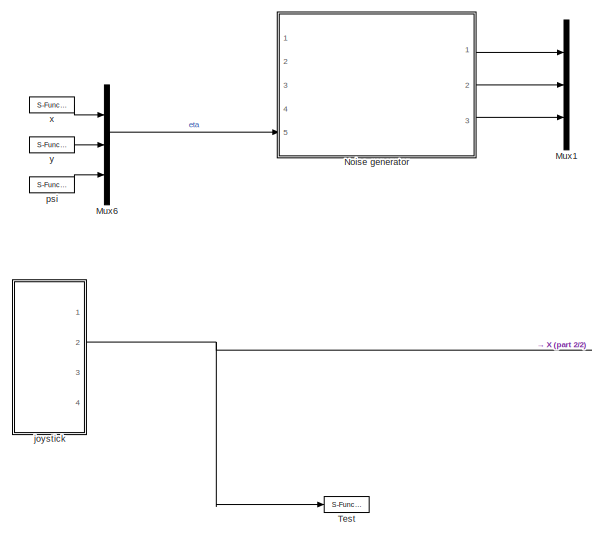
[diagram: root canvas - part 1/2, left side, full height]
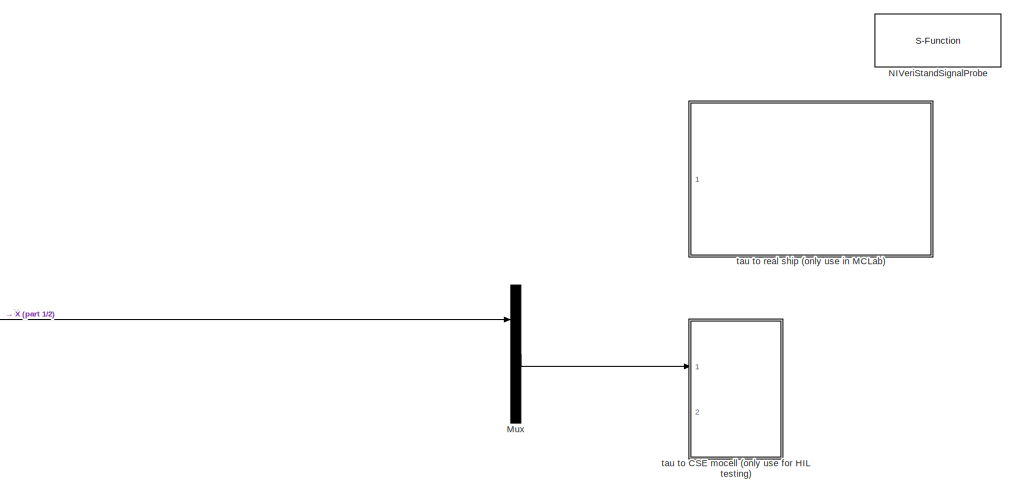
[diagram: root canvas - part 2/2, right side, full height]
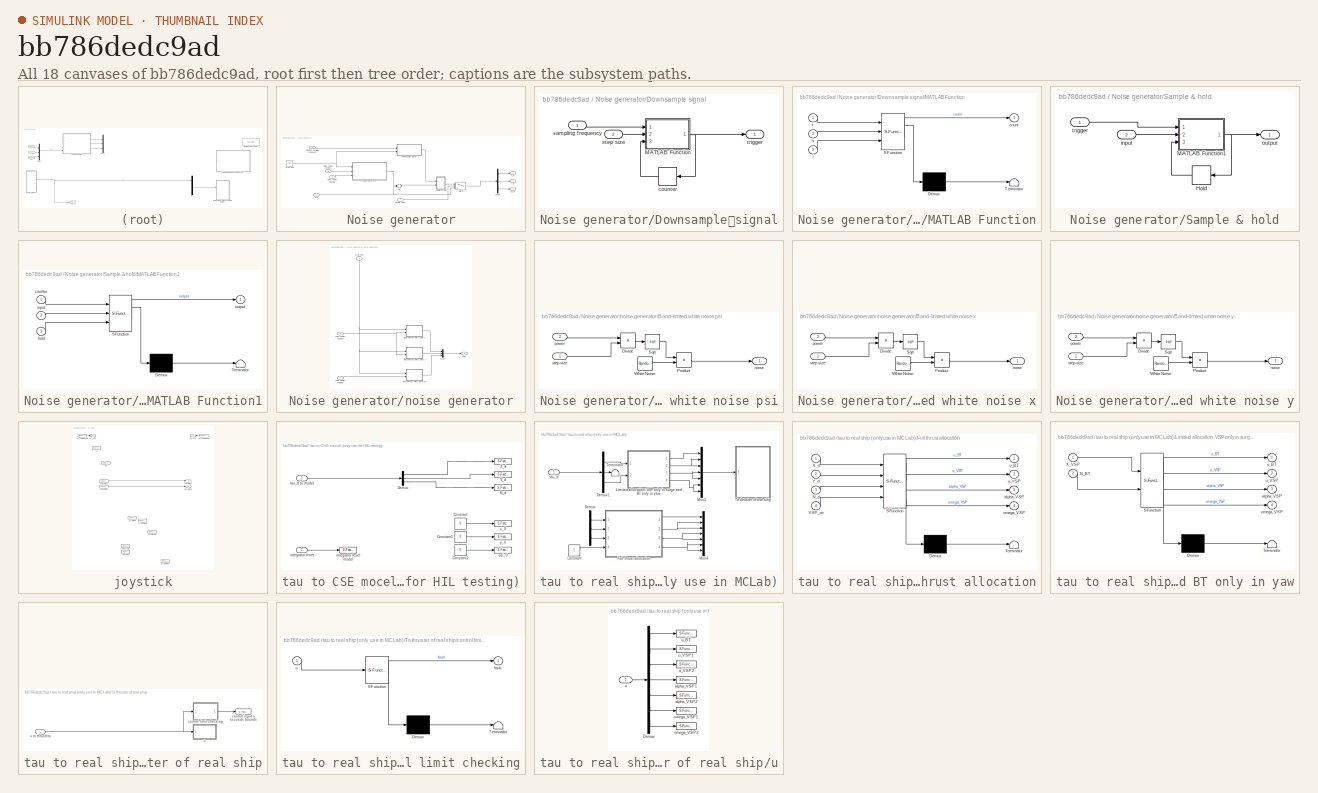
[diagram: thumbnail index - all 18 canvases of the model, root first then tree order]
MODEL slx_bb786dedc9ad
KIND model
CONFIG AbsTol = auto
CONFIG FixedStep = 0.01
CONFIG MaxStep = auto
CONFIG MinStep = auto
CONFIG RelTol = 1e-3
CONFIG SampleTimeConstraint = Unconstrained
CONFIG Solver = ode4
CONFIG SolverMode = Auto
CONFIG SolverName = ode4
CONFIG StartTime = 0.0
CONFIG StopTime = inf
BLOCK [Mux] Mux
  DisplayOption = bar
  Inputs = 3
  Ports = [3, 1]
BLOCK [Mux] Mux1
  DisplayOption = bar
  Inputs = 3
  Ports = [3, 1]
BLOCK [Mux] Mux6
  DisplayOption = bar
  Inputs = 3
  Ports = [3, 1]
BLOCK [S-Function] NIVeriStandSignalProbe
  FunctionName = NIVeriStandSignalProbe
  Parameters = 1
  Ports = []
BLOCK [SubSystem] Noise generator
  Ports = [5, 3]
  RequestExecContextInheritance = off
BLOCK [Demux] Noise generator/Demux
  DisplayOption = bar
  Outputs = 3
  Ports = [1, 3]
BLOCK [Inport] Noise generator/Desiired Sampling Frequency
  IconDisplay = Port number
  Port = 4
BLOCK [SubSystem] Noise generator/Downsample	signal
  Ports = [2, 1]
  RequestExecContextInheritance = off
BLOCK [SubSystem] Noise generator/Downsample	signal/MATLAB Function
  ErrorFcn = Stateflow.Translate.translate
  PermitHierarchicalResolution = ExplicitOnly
  Ports = [3, 1]
  RequestExecContextInheritance = off
  SFBlockType = MATLAB Function
  TreatAsAtomicUnit = on
BLOCK [Demux] Noise generator/Downsample	signal/MATLAB Function/ Demux 
  Outputs = 1
  Ports = [1, 1]
BLOCK [S-Function] Noise generator/Downsample	signal/MATLAB Function/ SFunction 
  EnableBusSupport = on
  FunctionName = sf_sfun
  PortCounts = [3 2]
  Ports = [3, 2]
  Tag = Stateflow S-Function ctrl_student 3
BLOCK [Terminator] Noise generator/Downsample	signal/MATLAB Function/ Terminator 
BLOCK [Outport] Noise generator/Downsample	signal/MATLAB Function/count
  IconDisplay = Port number
BLOCK [Inport] Noise generator/Downsample	signal/MATLAB Function/f
  IconDisplay = Port number
BLOCK [Inport] Noise generator/Downsample	signal/MATLAB Function/h
  IconDisplay = Port number
  Port = 2
BLOCK [Inport] Noise generator/Downsample	signal/MATLAB Function/i
  IconDisplay = Port number
  Port = 3
BLOCK [Memory] Noise generator/Downsample	signal/counter
BLOCK [Inport] Noise generator/Downsample	signal/sampling frequency
  IconDisplay = Port number
BLOCK [Inport] Noise generator/Downsample	signal/step size
  IconDisplay = Port number
  Port = 2
BLOCK [Outport] Noise generator/Downsample	signal/trigger
  IconDisplay = Port number
BLOCK [Inport] Noise generator/Enable noise
  IconDisplay = Port number
  Port = 3
BLOCK [Inport] Noise generator/Noise power heading
  IconDisplay = Port number
  Port = 2
BLOCK [Inport] Noise generator/Noise power position
  IconDisplay = Port number
BLOCK [SubSystem] Noise generator/Sample & hold
  Ports = [2, 1]
  RequestExecContextInheritance = off
BLOCK [Memory] Noise generator/Sample & hold/Hold
BLOCK [SubSystem] Noise generator/Sample & hold/MATLAB Function1
  ErrorFcn = Stateflow.Translate.translate
  PermitHierarchicalResolution = ExplicitOnly
  Ports = [3, 1]
  RequestExecContextInheritance = off
  SFBlockType = MATLAB Function
  TreatAsAtomicUnit = on
BLOCK [Demux] Noise generator/Sample & hold/MATLAB Function1/ Demux 
  Outputs = 1
  Ports = [1, 1]
BLOCK [S-Function] Noise generator/Sample & hold/MATLAB Function1/ SFunction 
  EnableBusSupport = on
  FunctionName = sf_sfun
  PortCounts = [3 2]
  Ports = [3, 2]
  Tag = Stateflow S-Function ctrl_student 5
BLOCK [Terminator] Noise generator/Sample & hold/MATLAB Function1/ Terminator 
BLOCK [Inport] Noise generator/Sample & hold/MATLAB Function1/counter
  IconDisplay = Port number
BLOCK [Inport] Noise generator/Sample & hold/MATLAB Function1/hold
  IconDisplay = Port number
  Port = 3
BLOCK [Inport] Noise generator/Sample & hold/MATLAB Function1/input
  IconDisplay = Port number
  Port = 2
BLOCK [Outport] Noise generator/Sample & hold/MATLAB Function1/output
  IconDisplay = Port number
BLOCK [Inport] Noise generator/Sample & hold/input
  IconDisplay = Port number
  Port = 2
BLOCK [Outport] Noise generator/Sample & hold/output
  IconDisplay = Port number
BLOCK [Inport] Noise generator/Sample & hold/trigger
  IconDisplay = Port number
BLOCK [Constant] Noise generator/Step size
  Value = 0.01
BLOCK [Sum] Noise generator/Sum
  InputSameDT = off
  OutDataTypeStr = Inherit: Inherit via internal rule
  Ports = [2, 1]
  SaturateOnIntegerOverflow = off
BLOCK [Switch] Noise generator/Switch
  Criteria = u2 ~= 0
  InputSameDT = off
  SaturateOnIntegerOverflow = off
BLOCK [Inport] Noise generator/eta
  IconDisplay = Port number
  Port = 5
BLOCK [SubSystem] Noise generator/noise generator
  Ports = [3, 1]
  RequestExecContextInheritance = off
BLOCK [SubSystem] Noise generator/noise generator/Band-limited white noise psi
  Ports = [2, 1]
  RequestExecContextInheritance = off
BLOCK [Product] Noise generator/noise generator/Band-limited white noise psi/Divide
  InputSameDT = off
  Inputs = */
  OutDataTypeStr = Inherit: Inherit via internal rule
  Ports = [2, 1]
  RndMeth = Floor
  SaturateOnIntegerOverflow = off
BLOCK [Product] Noise generator/noise generator/Band-limited white noise psi/Product
  InputSameDT = off
  OutDataTypeStr = Inherit: Inherit via internal rule
  Ports = [2, 1]
  RndMeth = Floor
  SaturateOnIntegerOverflow = off
BLOCK [Sqrt] Noise generator/noise generator/Band-limited white noise psi/Sqrt
BLOCK [RandomNumber] Noise generator/noise generator/Band-limited white noise psi/White Noise
  DisableCoverage = on
  Seed = 9025
BLOCK [Outport] Noise generator/noise generator/Band-limited white noise psi/noise
  IconDisplay = Port number
BLOCK [Inport] Noise generator/noise generator/Band-limited white noise psi/power
  IconDisplay = Port number
  Port = 2
BLOCK [Inport] Noise generator/noise generator/Band-limited white noise psi/step size
  IconDisplay = Port number
BLOCK [SubSystem] Noise generator/noise generator/Band-limited white noise x
  Ports = [2, 1]
  RequestExecContextInheritance = off
BLOCK [Product] Noise generator/noise generator/Band-limited white noise x/Divide
  InputSameDT = off
  Inputs = */
  OutDataTypeStr = Inherit: Inherit via internal rule
  Ports = [2, 1]
  RndMeth = Floor
  SaturateOnIntegerOverflow = off
BLOCK [Product] Noise generator/noise generator/Band-limited white noise x/Product
  InputSameDT = off
  OutDataTypeStr = Inherit: Inherit via internal rule
  Ports = [2, 1]
  RndMeth = Floor
  SaturateOnIntegerOverflow = off
BLOCK [Sqrt] Noise generator/noise generator/Band-limited white noise x/Sqrt
BLOCK [RandomNumber] Noise generator/noise generator/Band-limited white noise x/White Noise
  DisableCoverage = on
  Seed = 9024
BLOCK [Outport] Noise generator/noise generator/Band-limited white noise x/noise
  IconDisplay = Port number
BLOCK [Inport] Noise generator/noise generator/Band-limited white noise x/power
  IconDisplay = Port number
  Port = 2
BLOCK [Inport] Noise generator/noise generator/Band-limited white noise x/step size
  IconDisplay = Port number
BLOCK [SubSystem] Noise generator/noise generator/Band-limited white noise y
  Ports = [2, 1]
  RequestExecContextInheritance = off
BLOCK [Product] Noise generator/noise generator/Band-limited white noise y/Divide
  InputSameDT = off
  Inputs = */
  OutDataTypeStr = Inherit: Inherit via internal rule
  Ports = [2, 1]
  RndMeth = Floor
  SaturateOnIntegerOverflow = off
BLOCK [Product] Noise generator/noise generator/Band-limited white noise y/Product
  InputSameDT = off
  OutDataTypeStr = Inherit: Inherit via internal rule
  Ports = [2, 1]
  RndMeth = Floor
  SaturateOnIntegerOverflow = off
BLOCK [Sqrt] Noise generator/noise generator/Band-limited white noise y/Sqrt
BLOCK [RandomNumber] Noise generator/noise generator/Band-limited white noise y/White Noise
  DisableCoverage = on
  Seed = 123
BLOCK [Outport] Noise generator/noise generator/Band-limited white noise y/noise
  IconDisplay = Port number
BLOCK [Inport] Noise generator/noise generator/Band-limited white noise y/power
  IconDisplay = Port number
  Port = 2
BLOCK [Inport] Noise generator/noise generator/Band-limited white noise y/step size
  IconDisplay = Port number
BLOCK [Mux] Noise generator/noise generator/Mux1
  DisplayOption = bar
  Inputs = 3
  Ports = [3, 1]
BLOCK [Outport] Noise generator/noise generator/Out1
  IconDisplay = Port number
BLOCK [Inport] Noise generator/noise generator/noise power heading
  IconDisplay = Port number
  Port = 3
BLOCK [Inport] Noise generator/noise generator/noise power position
  IconDisplay = Port number
  Port = 2
BLOCK [Inport] Noise generator/noise generator/step size
  IconDisplay = Port number
BLOCK [Outport] Noise generator/psi_m
  IconDisplay = Port number
  Port = 3
BLOCK [Outport] Noise generator/x_m
  IconDisplay = Port number
BLOCK [Outport] Noise generator/y_m
  IconDisplay = Port number
  Port = 2
BLOCK [S-Function] Test
  CopyFcn = NIVeriStand_MDL_functions('', 'IO_copy');
  DeleteFcn = NIVeriStand_MDL_functions('', 'IO_delete');
  FunctionName = NIVeriStandIO
  MoveFcn = set_param(gcb, 'Mask', 'on');
  Parameters = width dtype portnum stime stype btype
  Ports = [1]
  Priority = 1
BLOCK [SubSystem] joystick
  Ports = [0, 4]
  RequestExecContextInheritance = off
BLOCK [S-Function] joystick/ArrowDown
  CopyFcn = NIVeriStand_MDL_functions('', 'IO_copy');
  DeleteFcn = NIVeriStand_MDL_functions('', 'IO_delete');
  FunctionName = NIVeriStandIO
  MoveFcn = set_param(gcb, 'Mask', 'on');
  Parameters = width dtype portnum stime stype btype
  Ports = [0, 1]
  Priority = 9
BLOCK [S-Function] joystick/ArrowLeft
  CopyFcn = NIVeriStand_MDL_functions('', 'IO_copy');
  DeleteFcn = NIVeriStand_MDL_functions('', 'IO_delete');
  FunctionName = NIVeriStandIO
  MoveFcn = set_param(gcb, 'Mask', 'on');
  Parameters = width dtype portnum stime stype btype
  Ports = [0, 1]
  Priority = 11
BLOCK [S-Function] joystick/ArrowRight
  CopyFcn = NIVeriStand_MDL_functions('', 'IO_copy');
  DeleteFcn = NIVeriStand_MDL_functions('', 'IO_delete');
  FunctionName = NIVeriStandIO
  MoveFcn = set_param(gcb, 'Mask', 'on');
  Parameters = width dtype portnum stime stype btype
  Ports = [0, 1]
  Priority = 12
BLOCK [S-Function] joystick/ArrowUp
  CopyFcn = NIVeriStand_MDL_functions('', 'IO_copy');
  DeleteFcn = NIVeriStand_MDL_functions('', 'IO_delete');
  FunctionName = NIVeriStandIO
  MoveFcn = set_param(gcb, 'Mask', 'on');
  Parameters = width dtype portnum stime stype btype
  Ports = [0, 1]
  Priority = 10
BLOCK [S-Function] joystick/L1
  CopyFcn = NIVeriStand_MDL_functions('', 'IO_copy');
  DeleteFcn = NIVeriStand_MDL_functions('', 'IO_delete');
  FunctionName = NIVeriStandIO
  MoveFcn = set_param(gcb, 'Mask', 'on');
  Parameters = width dtype portnum stime stype btype
  Ports = [0, 1]
  Priority = 7
BLOCK [Outport] joystick/L2_cont
  IconDisplay = Port number
BLOCK [S-Function] joystick/L2_continuous
  CopyFcn = NIVeriStand_MDL_functions('', 'IO_copy');
  DeleteFcn = NIVeriStand_MDL_functions('', 'IO_delete');
  FunctionName = NIVeriStandIO
  MoveFcn = set_param(gcb, 'Mask', 'on');
  Parameters = width dtype portnum stime stype btype
  Ports = [0, 1]
  Priority = 1
BLOCK [Outport] joystick/PosX Right
  IconDisplay = Port number
  Port = 3
BLOCK [S-Function] joystick/PosXLeft
  CopyFcn = NIVeriStand_MDL_functions('', 'IO_copy');
  DeleteFcn = NIVeriStand_MDL_functions('', 'IO_delete');
  FunctionName = NIVeriStandIO
  MoveFcn = set_param(gcb, 'Mask', 'on');
  Parameters = width dtype portnum stime stype btype
  Ports = [0, 1]
  Priority = 5
BLOCK [S-Function] joystick/PosXRight
  CopyFcn = NIVeriStand_MDL_functions('', 'IO_copy');
  DeleteFcn = NIVeriStand_MDL_functions('', 'IO_delete');
  FunctionName = NIVeriStandIO
  MoveFcn = set_param(gcb, 'Mask', 'on');
  Parameters = width dtype portnum stime stype btype
  Ports = [0, 1]
  Priority = 2
BLOCK [Outport] joystick/PosY Right
  IconDisplay = Port number
  Port = 4
BLOCK [S-Function] joystick/PosYLeft
  CopyFcn = NIVeriStand_MDL_functions('', 'IO_copy');
  DeleteFcn = NIVeriStand_MDL_functions('', 'IO_delete');
  FunctionName = NIVeriStandIO
  MoveFcn = set_param(gcb, 'Mask', 'on');
  Parameters = width dtype portnum stime stype btype
  Ports = [0, 1]
  Priority = 6
BLOCK [S-Function] joystick/PosYRight
  CopyFcn = NIVeriStand_MDL_functions('', 'IO_copy');
  DeleteFcn = NIVeriStand_MDL_functions('', 'IO_delete');
  FunctionName = NIVeriStandIO
  MoveFcn = set_param(gcb, 'Mask', 'on');
  Parameters = width dtype portnum stime stype btype
  Ports = [0, 1]
  Priority = 3
BLOCK [S-Function] joystick/R1
  CopyFcn = NIVeriStand_MDL_functions('', 'IO_copy');
  DeleteFcn = NIVeriStand_MDL_functions('', 'IO_delete');
  FunctionName = NIVeriStandIO
  MoveFcn = set_param(gcb, 'Mask', 'on');
  Parameters = width dtype portnum stime stype btype
  Ports = [0, 1]
  Priority = 8
BLOCK [Outport] joystick/R2_cont
  IconDisplay = Port number
  Port = 2
BLOCK [S-Function] joystick/R2_continuous
  CopyFcn = NIVeriStand_MDL_functions('', 'IO_copy');
  DeleteFcn = NIVeriStand_MDL_functions('', 'IO_delete');
  FunctionName = NIVeriStandIO
  MoveFcn = set_param(gcb, 'Mask', 'on');
  Parameters = width dtype portnum stime stype btype
  Ports = [0, 1]
  Priority = 4
BLOCK [S-Function] psi
  CopyFcn = NIVeriStand_MDL_functions('', 'IO_copy');
  DeleteFcn = NIVeriStand_MDL_functions('', 'IO_delete');
  FunctionName = NIVeriStandIO
  MoveFcn = set_param(gcb, 'Mask', 'on');
  Parameters = width dtype portnum stime stype btype
  Ports = [0, 1]
  Priority = 2
BLOCK [SubSystem] tau to CSE mocell (only use for HIL testing)
  Ports = [2]
  RequestExecContextInheritance = off
BLOCK [Constant] tau to CSE mocell (only use for HIL testing)/Constant
  Value = 0
BLOCK [Constant] tau to CSE mocell (only use for HIL testing)/Constant1
  Value = 0
BLOCK [Constant] tau to CSE mocell (only use for HIL testing)/Constant2
  Value = 0
BLOCK [Demux] tau to CSE mocell (only use for HIL testing)/Demux
  DisplayOption = bar
  Outputs = 3
  Ports = [1, 3]
BLOCK [S-Function] tau to CSE mocell (only use for HIL testing)/N_d
  CopyFcn = NIVeriStand_MDL_functions('', 'IO_copy');
  DeleteFcn = NIVeriStand_MDL_functions('', 'IO_delete');
  FunctionName = NIVeriStandIO
  MoveFcn = set_param(gcb, 'Mask', 'on');
  Parameters = width dtype portnum stime stype btype
  Ports = [1]
  Priority = 2
BLOCK [S-Function] tau to CSE mocell (only use for HIL testing)/X_d
  CopyFcn = NIVeriStand_MDL_functions('', 'IO_copy');
  DeleteFcn = NIVeriStand_MDL_functions('', 'IO_delete');
  FunctionName = NIVeriStandIO
  MoveFcn = set_param(gcb, 'Mask', 'on');
  Parameters = width dtype portnum stime stype btype
  Ports = [1]
  Priority = 1
BLOCK [S-Function] tau to CSE mocell (only use for HIL testing)/Y_d
  CopyFcn = NIVeriStand_MDL_functions('', 'IO_copy');
  DeleteFcn = NIVeriStand_MDL_functions('', 'IO_delete');
  FunctionName = NIVeriStandIO
  MoveFcn = set_param(gcb, 'Mask', 'on');
  Parameters = width dtype portnum stime stype btype
  Ports = [1]
  Priority = 3
BLOCK [Inport] tau to CSE mocell (only use for HIL testing)/integrator reset
  IconDisplay = Port number
  Port = 2
BLOCK [S-Function] tau to CSE mocell (only use for HIL testing)/integrator reset model
  CopyFcn = NIVeriStand_MDL_functions('', 'IO_copy');
  DeleteFcn = NIVeriStand_MDL_functions('', 'IO_delete');
  FunctionName = NIVeriStandIO
  MoveFcn = set_param(gcb, 'Mask', 'on');
  Parameters = width dtype portnum stime stype btype
  Ports = [1]
  Priority = 7
BLOCK [S-Function] tau to CSE mocell (only use for HIL testing)/osi_0 
  CopyFcn = NIVeriStand_MDL_functions('', 'IO_copy');
  DeleteFcn = NIVeriStand_MDL_functions('', 'IO_delete');
  FunctionName = NIVeriStandIO
  MoveFcn = set_param(gcb, 'Mask', 'on');
  Parameters = width dtype portnum stime stype btype
  Ports = [1]
  Priority = 4
BLOCK [Inport] tau to CSE mocell (only use for HIL testing)/tau_d to model
  IconDisplay = Port number
BLOCK [S-Function] tau to CSE mocell (only use for HIL testing)/x_0
  CopyFcn = NIVeriStand_MDL_functions('', 'IO_copy');
  DeleteFcn = NIVeriStand_MDL_functions('', 'IO_delete');
  FunctionName = NIVeriStandIO
  MoveFcn = set_param(gcb, 'Mask', 'on');
  Parameters = width dtype portnum stime stype btype
  Ports = [1]
  Priority = 5
BLOCK [S-Function] tau to CSE mocell (only use for HIL testing)/y_0
  CopyFcn = NIVeriStand_MDL_functions('', 'IO_copy');
  DeleteFcn = NIVeriStand_MDL_functions('', 'IO_delete');
  FunctionName = NIVeriStandIO
  MoveFcn = set_param(gcb, 'Mask', 'on');
  Parameters = width dtype portnum stime stype btype
  Ports = [1]
  Priority = 6
BLOCK [SubSystem] tau to real ship (only use in MCLab)
  Ports = [1]
  RequestExecContextInheritance = off
BLOCK [Constant] tau to real ship (only use in MCLab)/Constant
BLOCK [Demux] tau to real ship (only use in MCLab)/Demux
  DisplayOption = bar
  Outputs = 3
  Ports = [1, 3]
BLOCK [Demux] tau to real ship (only use in MCLab)/Demux1
  DisplayOption = bar
  Outputs = 3
  Ports = [1, 3]
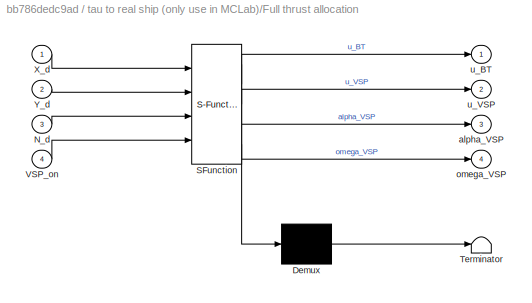
BLOCK [SubSystem] tau to real ship (only use in MCLab)/Full thrust allocation
  ErrorFcn = Stateflow.Translate.translate
  PermitHierarchicalResolution = ExplicitOnly
  Ports = [4, 4]
  RequestExecContextInheritance = off
  SFBlockType = MATLAB Function
  TreatAsAtomicUnit = on
BLOCK [Demux] tau to real ship (only use in MCLab)/Full thrust allocation/ Demux 
  Outputs = 1
  Ports = [1, 1]
BLOCK [S-Function] tau to real ship (only use in MCLab)/Full thrust allocation/ SFunction 
  EnableBusSupport = on
  FunctionName = sf_sfun
  PortCounts = [4 5]
  Ports = [4, 5]
  Tag = Stateflow S-Function ctrl_student 1
BLOCK [Terminator] tau to real ship (only use in MCLab)/Full thrust allocation/ Terminator 
BLOCK [Inport] tau to real ship (only use in MCLab)/Full thrust allocation/N_d
  IconDisplay = Port number
  Port = 3
BLOCK [Inport] tau to real ship (only use in MCLab)/Full thrust allocation/VSP_on
  IconDisplay = Port number
  Port = 4
BLOCK [Inport] tau to real ship (only use in MCLab)/Full thrust allocation/X_d
  IconDisplay = Port number
BLOCK [Inport] tau to real ship (only use in MCLab)/Full thrust allocation/Y_d
  IconDisplay = Port number
  Port = 2
BLOCK [Outport] tau to real ship (only use in MCLab)/Full thrust allocation/alpha_VSP
  IconDisplay = Port number
  Port = 3
BLOCK [Outport] tau to real ship (only use in MCLab)/Full thrust allocation/omega_VSP
  IconDisplay = Port number
  Port = 4
BLOCK [Outport] tau to real ship (only use in MCLab)/Full thrust allocation/u_BT
  IconDisplay = Port number
BLOCK [Outport] tau to real ship (only use in MCLab)/Full thrust allocation/u_VSP
  IconDisplay = Port number
  Port = 2
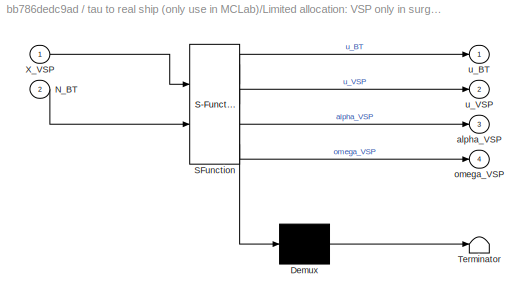
BLOCK [SubSystem] tau to real ship (only use in MCLab)/Limited allocation: VSP only  in surge and BT only in yaw
  ErrorFcn = Stateflow.Translate.translate
  PermitHierarchicalResolution = ExplicitOnly
  Ports = [2, 4]
  RequestExecContextInheritance = off
  SFBlockType = MATLAB Function
  TreatAsAtomicUnit = on
BLOCK [Demux] tau to real ship (only use in MCLab)/Limited allocation: VSP only  in surge and BT only in yaw/ Demux 
  Outputs = 1
  Ports = [1, 1]
BLOCK [S-Function] tau to real ship (only use in MCLab)/Limited allocation: VSP only  in surge and BT only in yaw/ SFunction 
  EnableBusSupport = on
  FunctionName = sf_sfun
  PortCounts = [2 5]
  Ports = [2, 5]
  Tag = Stateflow S-Function ctrl_student 4
BLOCK [Terminator] tau to real ship (only use in MCLab)/Limited allocation: VSP only  in surge and BT only in yaw/ Terminator 
BLOCK [Inport] tau to real ship (only use in MCLab)/Limited allocation: VSP only  in surge and BT only in yaw/N_BT
  IconDisplay = Port number
  Port = 2
BLOCK [Inport] tau to real ship (only use in MCLab)/Limited allocation: VSP only  in surge and BT only in yaw/X_VSP
  IconDisplay = Port number
BLOCK [Outport] tau to real ship (only use in MCLab)/Limited allocation: VSP only  in surge and BT only in yaw/alpha_VSP
  IconDisplay = Port number
  Port = 3
BLOCK [Outport] tau to real ship (only use in MCLab)/Limited allocation: VSP only  in surge and BT only in yaw/omega_VSP
  IconDisplay = Port number
  Port = 4
BLOCK [Outport] tau to real ship (only use in MCLab)/Limited allocation: VSP only  in surge and BT only in yaw/u_BT
  IconDisplay = Port number
BLOCK [Outport] tau to real ship (only use in MCLab)/Limited allocation: VSP only  in surge and BT only in yaw/u_VSP
  IconDisplay = Port number
  Port = 2
BLOCK [Mux] tau to real ship (only use in MCLab)/Mux4
  DisplayOption = bar
  Inputs = 7
  Ports = [7, 1]
BLOCK [Mux] tau to real ship (only use in MCLab)/Mux5
  DisplayOption = bar
  Inputs = 7
  Ports = [7, 1]
BLOCK [Terminator] tau to real ship (only use in MCLab)/Terminator
BLOCK [SubSystem] tau to real ship (only use in MCLab)/To thruster of real ship
  Ports = [1]
  RequestExecContextInheritance = off
BLOCK [S-Function] tau to real ship (only use in MCLab)/To thruster of real ship/control input u exceeds bounds
  CopyFcn = NIVeriStand_MDL_functions('', 'IO_copy');
  DeleteFcn = NIVeriStand_MDL_functions('', 'IO_delete');
  FunctionName = NIVeriStandIO
  MoveFcn = set_param(gcb, 'Mask', 'on');
  Parameters = width dtype portnum stime stype btype
  Ports = [1]
  Priority = 8
BLOCK [SubSystem] tau to real ship (only use in MCLab)/To thruster of real ship/control limit checking
  ErrorFcn = Stateflow.Translate.translate
  PermitHierarchicalResolution = ExplicitOnly
  Ports = [1, 1]
  RequestExecContextInheritance = off
  SFBlockType = MATLAB Function
  TreatAsAtomicUnit = on
BLOCK [Demux] tau to real ship (only use in MCLab)/To thruster of real ship/control limit checking/ Demux 
  Outputs = 1
  Ports = [1, 1]
BLOCK [S-Function] tau to real ship (only use in MCLab)/To thruster of real ship/control limit checking/ SFunction 
  EnableBusSupport = on
  FunctionName = sf_sfun
  PortCounts = [1 2]
  Ports = [1, 2]
  Tag = Stateflow S-Function ctrl_student 2
BLOCK [Terminator] tau to real ship (only use in MCLab)/To thruster of real ship/control limit checking/ Terminator 
BLOCK [Outport] tau to real ship (only use in MCLab)/To thruster of real ship/control limit checking/fault
  IconDisplay = Port number
BLOCK [Inport] tau to real ship (only use in MCLab)/To thruster of real ship/control limit checking/u
  IconDisplay = Port number
BLOCK [SubSystem] tau to real ship (only use in MCLab)/To thruster of real ship/u
  Ports = [1]
  RequestExecContextInheritance = off
BLOCK [Inport] tau to real ship (only use in MCLab)/To thruster of real ship/u to thrusters
  IconDisplay = Port number
BLOCK [Demux] tau to real ship (only use in MCLab)/To thruster of real ship/u/Demux
  DisplayOption = bar
  Outputs = 7
  Ports = [1, 7]
BLOCK [S-Function] tau to real ship (only use in MCLab)/To thruster of real ship/u/alpha_VSP1
  CopyFcn = NIVeriStand_MDL_functions('', 'IO_copy');
  DeleteFcn = NIVeriStand_MDL_functions('', 'IO_delete');
  FunctionName = NIVeriStandIO
  MoveFcn = set_param(gcb, 'Mask', 'on');
  Parameters = width dtype portnum stime stype btype
  Ports = [1]
  Priority = 4
BLOCK [S-Function] tau to real ship (only use in MCLab)/To thruster of real ship/u/alpha_VSP2
  CopyFcn = NIVeriStand_MDL_functions('', 'IO_copy');
  DeleteFcn = NIVeriStand_MDL_functions('', 'IO_delete');
  FunctionName = NIVeriStandIO
  MoveFcn = set_param(gcb, 'Mask', 'on');
  Parameters = width dtype portnum stime stype btype
  Ports = [1]
  Priority = 1
BLOCK [S-Function] tau to real ship (only use in MCLab)/To thruster of real ship/u/omega_VSP1
  CopyFcn = NIVeriStand_MDL_functions('', 'IO_copy');
  DeleteFcn = NIVeriStand_MDL_functions('', 'IO_delete');
  FunctionName = NIVeriStandIO
  MoveFcn = set_param(gcb, 'Mask', 'on');
  Parameters = width dtype portnum stime stype btype
  Ports = [1]
  Priority = 2
BLOCK [S-Function] tau to real ship (only use in MCLab)/To thruster of real ship/u/omega_VSP2
  CopyFcn = NIVeriStand_MDL_functions('', 'IO_copy');
  DeleteFcn = NIVeriStand_MDL_functions('', 'IO_delete');
  FunctionName = NIVeriStandIO
  MoveFcn = set_param(gcb, 'Mask', 'on');
  Parameters = width dtype portnum stime stype btype
  Ports = [1]
  Priority = 3
BLOCK [Inport] tau to real ship (only use in MCLab)/To thruster of real ship/u/u
  IconDisplay = Port number
BLOCK [S-Function] tau to real ship (only use in MCLab)/To thruster of real ship/u/u_BT
  CopyFcn = NIVeriStand_MDL_functions('', 'IO_copy');
  DeleteFcn = NIVeriStand_MDL_functions('', 'IO_delete');
  FunctionName = NIVeriStandIO
  MoveFcn = set_param(gcb, 'Mask', 'on');
  Parameters = width dtype portnum stime stype btype
  Ports = [1]
  Priority = 5
BLOCK [S-Function] tau to real ship (only use in MCLab)/To thruster of real ship/u/u_VSP1
  CopyFcn = NIVeriStand_MDL_functions('', 'IO_copy');
  DeleteFcn = NIVeriStand_MDL_functions('', 'IO_delete');
  FunctionName = NIVeriStandIO
  MoveFcn = set_param(gcb, 'Mask', 'on');
  Parameters = width dtype portnum stime stype btype
  Ports = [1]
  Priority = 6
BLOCK [S-Function] tau to real ship (only use in MCLab)/To thruster of real ship/u/u_VSP2
  CopyFcn = NIVeriStand_MDL_functions('', 'IO_copy');
  DeleteFcn = NIVeriStand_MDL_functions('', 'IO_delete');
  FunctionName = NIVeriStandIO
  MoveFcn = set_param(gcb, 'Mask', 'on');
  Parameters = width dtype portnum stime stype btype
  Ports = [1]
  Priority = 7
BLOCK [Inport] tau to real ship (only use in MCLab)/tau_d
  IconDisplay = Port number
BLOCK [S-Function] x
  CopyFcn = NIVeriStand_MDL_functions('', 'IO_copy');
  DeleteFcn = NIVeriStand_MDL_functions('', 'IO_delete');
  FunctionName = NIVeriStandIO
  MoveFcn = set_param(gcb, 'Mask', 'on');
  Parameters = width dtype portnum stime stype btype
  Ports = [0, 1]
  Priority = 3
BLOCK [S-Function] y
  CopyFcn = NIVeriStand_MDL_functions('', 'IO_copy');
  DeleteFcn = NIVeriStand_MDL_functions('', 'IO_delete');
  FunctionName = NIVeriStandIO
  MoveFcn = set_param(gcb, 'Mask', 'on');
  Parameters = width dtype portnum stime stype btype
  Ports = [0, 1]
  Priority = 1
LINE Mux6:1 -> Noise generator:5
LINE Mux:1 -> tau to CSE mocell (only use for HIL testing):1
LINE Noise generator/Demux:1 -> Noise generator/x_m:1
LINE Noise generator/Demux:2 -> Noise generator/y_m:1
LINE Noise generator/Demux:3 -> Noise generator/psi_m:1
LINE Noise generator/Desiired Sampling Frequency:1 -> Noise generator/Downsample	signal:1
NET Noise generator/Downsample	signal/MATLAB Function:1 -> Noise generator/Downsample	signal/counter:1, Noise generator/Downsample	signal/trigger:1
LINE Noise generator/Downsample	signal/counter:1 -> Noise generator/Downsample	signal/MATLAB Function:3
LINE Noise generator/Downsample	signal/sampling frequency:1 -> Noise generator/Downsample	signal/MATLAB Function:1
LINE Noise generator/Downsample	signal/step size:1 -> Noise generator/Downsample	signal/MATLAB Function:2
LINE Noise generator/Downsample	signal:1 -> Noise generator/Sample & hold:1
LINE Noise generator/Enable noise:1 -> Noise generator/Switch:2
LINE Noise generator/Noise power heading:1 -> Noise generator/noise generator:3
LINE Noise generator/Noise power position:1 -> Noise generator/noise generator:2
LINE Noise generator/Sample & hold/Hold:1 -> Noise generator/Sample & hold/MATLAB Function1:3
NET Noise generator/Sample & hold/MATLAB Function1:1 -> Noise generator/Sample & hold/Hold:1, Noise generator/Sample & hold/output:1
LINE Noise generator/Sample & hold/input:1 -> Noise generator/Sample & hold/MATLAB Function1:2
LINE Noise generator/Sample & hold/trigger:1 -> Noise generator/Sample & hold/MATLAB Function1:1
LINE Noise generator/Sample & hold:1 -> Noise generator/Switch:1
NET Noise generator/Step size:1 -> Noise generator/Downsample	signal:2, Noise generator/noise generator:1
LINE Noise generator/Sum:1 -> Noise generator/Sample & hold:2
LINE Noise generator/Switch:1 -> Noise generator/Demux:1
NET Noise generator/eta:1 -> Noise generator/Sum:2, Noise generator/Switch:3
LINE Noise generator/noise generator/Band-limited white noise psi/Divide:1 -> Noise generator/noise generator/Band-limited white noise psi/Sqrt:1
LINE Noise generator/noise generator/Band-limited white noise psi/Product:1 -> Noise generator/noise generator/Band-limited white noise psi/noise:1
LINE Noise generator/noise generator/Band-limited white noise psi/Sqrt:1 -> Noise generator/noise generator/Band-limited white noise psi/Product:1
LINE Noise generator/noise generator/Band-limited white noise psi/White Noise:1 -> Noise generator/noise generator/Band-limited white noise psi/Product:2
LINE Noise generator/noise generator/Band-limited white noise psi/power:1 -> Noise generator/noise generator/Band-limited white noise psi/Divide:1
LINE Noise generator/noise generator/Band-limited white noise psi/step size:1 -> Noise generator/noise generator/Band-limited white noise psi/Divide:2
LINE Noise generator/noise generator/Band-limited white noise psi:1 -> Noise generator/noise generator/Mux1:3
LINE Noise generator/noise generator/Band-limited white noise x/Divide:1 -> Noise generator/noise generator/Band-limited white noise x/Sqrt:1
LINE Noise generator/noise generator/Band-limited white noise x/Product:1 -> Noise generator/noise generator/Band-limited white noise x/noise:1
LINE Noise generator/noise generator/Band-limited white noise x/Sqrt:1 -> Noise generator/noise generator/Band-limited white noise x/Product:1
LINE Noise generator/noise generator/Band-limited white noise x/White Noise:1 -> Noise generator/noise generator/Band-limited white noise x/Product:2
LINE Noise generator/noise generator/Band-limited white noise x/power:1 -> Noise generator/noise generator/Band-limited white noise x/Divide:1
LINE Noise generator/noise generator/Band-limited white noise x/step size:1 -> Noise generator/noise generator/Band-limited white noise x/Divide:2
LINE Noise generator/noise generator/Band-limited white noise x:1 -> Noise generator/noise generator/Mux1:1
LINE Noise generator/noise generator/Band-limited white noise y/Divide:1 -> Noise generator/noise generator/Band-limited white noise y/Sqrt:1
LINE Noise generator/noise generator/Band-limited white noise y/Product:1 -> Noise generator/noise generator/Band-limited white noise y/noise:1
LINE Noise generator/noise generator/Band-limited white noise y/Sqrt:1 -> Noise generator/noise generator/Band-limited white noise y/Product:1
LINE Noise generator/noise generator/Band-limited white noise y/White Noise:1 -> Noise generator/noise generator/Band-limited white noise y/Product:2
LINE Noise generator/noise generator/Band-limited white noise y/power:1 -> Noise generator/noise generator/Band-limited white noise y/Divide:1
LINE Noise generator/noise generator/Band-limited white noise y/step size:1 -> Noise generator/noise generator/Band-limited white noise y/Divide:2
LINE Noise generator/noise generator/Band-limited white noise y:1 -> Noise generator/noise generator/Mux1:2
LINE Noise generator/noise generator/Mux1:1 -> Noise generator/noise generator/Out1:1
LINE Noise generator/noise generator/noise power heading:1 -> Noise generator/noise generator/Band-limited white noise psi:2
NET Noise generator/noise generator/noise power position:1 -> Noise generator/noise generator/Band-limited white noise x:2, Noise generator/noise generator/Band-limited white noise y:2
NET Noise generator/noise generator/step size:1 -> Noise generator/noise generator/Band-limited white noise psi:1, Noise generator/noise generator/Band-limited white noise x:1, Noise generator/noise generator/Band-limited white noise y:1
LINE Noise generator/noise generator:1 -> Noise generator/Sum:1
LINE Noise generator:1 -> Mux1:1
LINE Noise generator:2 -> Mux1:2
LINE Noise generator:3 -> Mux1:3
LINE joystick/L2_continuous:1 -> joystick/L2_cont:1
LINE joystick/PosXRight:1 -> joystick/PosX Right:1
LINE joystick/PosYRight:1 -> joystick/PosY Right:1
LINE joystick/R2_continuous:1 -> joystick/R2_cont:1
NET joystick:2 -> Mux:1, Test:1
LINE psi:1 -> Mux6:3
LINE tau to CSE mocell (only use for HIL testing)/Constant1:1 -> tau to CSE mocell (only use for HIL testing)/y_0:1
LINE tau to CSE mocell (only use for HIL testing)/Constant2:1 -> tau to CSE mocell (only use for HIL testing)/osi_0 :1
LINE tau to CSE mocell (only use for HIL testing)/Constant:1 -> tau to CSE mocell (only use for HIL testing)/x_0:1
LINE tau to CSE mocell (only use for HIL testing)/Demux:1 -> tau to CSE mocell (only use for HIL testing)/X_d:1
LINE tau to CSE mocell (only use for HIL testing)/Demux:2 -> tau to CSE mocell (only use for HIL testing)/Y_d:1
LINE tau to CSE mocell (only use for HIL testing)/Demux:3 -> tau to CSE mocell (only use for HIL testing)/N_d:1
LINE tau to CSE mocell (only use for HIL testing)/integrator reset:1 -> tau to CSE mocell (only use for HIL testing)/integrator reset model:1
LINE tau to CSE mocell (only use for HIL testing)/tau_d to model:1 -> tau to CSE mocell (only use for HIL testing)/Demux:1
LINE tau to real ship (only use in MCLab)/Constant:1 -> tau to real ship (only use in MCLab)/Full thrust allocation:4
LINE tau to real ship (only use in MCLab)/Demux1:1 -> tau to real ship (only use in MCLab)/Limited allocation: VSP only  in surge and BT only in yaw:1
LINE tau to real ship (only use in MCLab)/Demux1:2 -> tau to real ship (only use in MCLab)/Terminator:1
LINE tau to real ship (only use in MCLab)/Demux1:3 -> tau to real ship (only use in MCLab)/Limited allocation: VSP only  in surge and BT only in yaw:2
LINE tau to real ship (only use in MCLab)/Demux:1 -> tau to real ship (only use in MCLab)/Full thrust allocation:1
LINE tau to real ship (only use in MCLab)/Demux:2 -> tau to real ship (only use in MCLab)/Full thrust allocation:2
LINE tau to real ship (only use in MCLab)/Demux:3 -> tau to real ship (only use in MCLab)/Full thrust allocation:3
LINE tau to real ship (only use in MCLab)/Full thrust allocation:1 -> tau to real ship (only use in MCLab)/Mux4:1
NET tau to real ship (only use in MCLab)/Full thrust allocation:2 -> tau to real ship (only use in MCLab)/Mux4:2, tau to real ship (only use in MCLab)/Mux4:3
NET tau to real ship (only use in MCLab)/Full thrust allocation:3 -> tau to real ship (only use in MCLab)/Mux4:4, tau to real ship (only use in MCLab)/Mux4:5
NET tau to real ship (only use in MCLab)/Full thrust allocation:4 -> tau to real ship (only use in MCLab)/Mux4:6, tau to real ship (only use in MCLab)/Mux4:7
LINE tau to real ship (only use in MCLab)/Limited allocation: VSP only  in surge and BT only in yaw:1 -> tau to real ship (only use in MCLab)/Mux5:1
NET tau to real ship (only use in MCLab)/Limited allocation: VSP only  in surge and BT only in yaw:2 -> tau to real ship (only use in MCLab)/Mux5:2, tau to real ship (only use in MCLab)/Mux5:3
NET tau to real ship (only use in MCLab)/Limited allocation: VSP only  in surge and BT only in yaw:3 -> tau to real ship (only use in MCLab)/Mux5:4, tau to real ship (only use in MCLab)/Mux5:5
NET tau to real ship (only use in MCLab)/Limited allocation: VSP only  in surge and BT only in yaw:4 -> tau to real ship (only use in MCLab)/Mux5:6, tau to real ship (only use in MCLab)/Mux5:7
LINE tau to real ship (only use in MCLab)/Mux5:1 -> tau to real ship (only use in MCLab)/To thruster of real ship:1
LINE tau to real ship (only use in MCLab)/To thruster of real ship/control limit checking:1 -> tau to real ship (only use in MCLab)/To thruster of real ship/control input u exceeds bounds:1
NET tau to real ship (only use in MCLab)/To thruster of real ship/u to thrusters:1 -> tau to real ship (only use in MCLab)/To thruster of real ship/control limit checking:1, tau to real ship (only use in MCLab)/To thruster of real ship/u:1
LINE tau to real ship (only use in MCLab)/To thruster of real ship/u/Demux:1 -> tau to real ship (only use in MCLab)/To thruster of real ship/u/u_BT:1
LINE tau to real ship (only use in MCLab)/To thruster of real ship/u/Demux:2 -> tau to real ship (only use in MCLab)/To thruster of real ship/u/u_VSP1:1
LINE tau to real ship (only use in MCLab)/To thruster of real ship/u/Demux:3 -> tau to real ship (only use in MCLab)/To thruster of real ship/u/u_VSP2:1
LINE tau to real ship (only use in MCLab)/To thruster of real ship/u/Demux:4 -> tau to real ship (only use in MCLab)/To thruster of real ship/u/alpha_VSP1:1
LINE tau to real ship (only use in MCLab)/To thruster of real ship/u/Demux:5 -> tau to real ship (only use in MCLab)/To thruster of real ship/u/alpha_VSP2:1
LINE tau to real ship (only use in MCLab)/To thruster of real ship/u/Demux:6 -> tau to real ship (only use in MCLab)/To thruster of real ship/u/omega_VSP1:1
LINE tau to real ship (only use in MCLab)/To thruster of real ship/u/Demux:7 -> tau to real ship (only use in MCLab)/To thruster of real ship/u/omega_VSP2:1
LINE tau to real ship (only use in MCLab)/To thruster of real ship/u/u:1 -> tau to real ship (only use in MCLab)/To thruster of real ship/u/Demux:1
LINE tau to real ship (only use in MCLab)/tau_d:1 -> tau to real ship (only use in MCLab)/Demux1:1
LINE x:1 -> Mux6:1
LINE y:1 -> Mux6:2
note: NET lines group one-source signal fan-out (src -> all destinations, sorted); 1:1 wires keep LINE
CHART tau to real ship (only use in MCLab)/Full thrust allocation states=1 transitions=1
  STATE_LABEL 'eML_blk_kernel()'
  STATE_LABEL 'SCRIPT:\nfunction [u_BT,u_VSP,alpha_VSP,omega_VSP]= fcn(X_d,Y_d,N_d, VSP_on)\n\n% Forces and moments vector\ntau = [X_d\n       Y_d\n       N_d];\n\n% Extended thrust configuration matrix\nl_VSP = -0.4575;\nl_BT  = 0.3875;\nT = [1 0     0\n     0 1     1\n     0 l_VSP l_BT];\n\n% Extended thrust coefficient matrix\nF_max_VSP = 1.165;\nF_max_BT  = 2.629;\nK = [F_max_VSP 0         0\n     0         F_max_VSP 0\n     0 ...<+259ch>'
CHART tau to real ship (only use in MCLab)/To thruster of real ship/control limit checking states=1 transitions=1
  STATE_LABEL 'eML_blk_kernel()'
  STATE_LABEL 'SCRIPT:\nfunction fault= fcn(u)\nu_BT       = u(1);\nu_VSP1     = u(2);\nu_VSP2     = u(3);\nalpha_VSP1 = u(4);\nalpha_VSP2 = u(5);\nomega_VSP1 = u(6);\nomega_VSP2 = u(7);\n\nOK = -1  <= u_BT       & u_BT       <= 1  & ...\n     0   <= u_VSP1     & u_VSP1     <= 1  & ...\n     0   <= u_VSP2     & u_VSP2     <= 1  & ...\n     -pi <= alpha_VSP1 & alpha_VSP1 <= pi & ...\n     -pi <= alpha_VSP2 & alpha_VSP2 <= pi &...<+111ch>'
CHART Noise generator/Downsample	signal/MATLAB Function states=1 transitions=1
  STATE_LABEL 'eML_blk_kernel()'
  STATE_LABEL 'SCRIPT:\nfunction count = fcn(f,h,i)\n%#codegen\nsampling_time = 1/f;\nif (i+1)*h >= sampling_time\n    count = 0;\nelse\n    count = i+1;\nend'
CHART tau to real ship (only use in MCLab)/Limited allocation:
VSP only  in surge and
BT only in yaw states=1 transitions=1
  STATE_LABEL 'eML_blk_kernel()'
  STATE_LABEL 'SCRIPT:\nfunction [u_BT,u_VSP,alpha_VSP,omega_VSP]= fcn(X_VSP,N_BT)\n\nl_BT     = 0.3875;\nF_max_BT = 2.629;\nu_BT     = N_BT/(l_BT*F_max_BT);\n\nomega_VSP = 0.3;\nF_max_VSP = 1.165;\nu_VSP     = abs(X_VSP)/(2*F_max_VSP);\nalpha_VSP = pi*(X_VSP<=0); % 0 if positive X_VSP, pi if negative'
CHART Noise generator/Sample & hold/MATLAB Function1 states=1 transitions=1
  STATE_LABEL 'eML_blk_kernel()'
  STATE_LABEL 'SCRIPT:\nfunction output = fcn(counter,input,hold)\n%#codegen\n\nif counter == 0\n    output = input;\nelse\n    output = hold;\nend'
